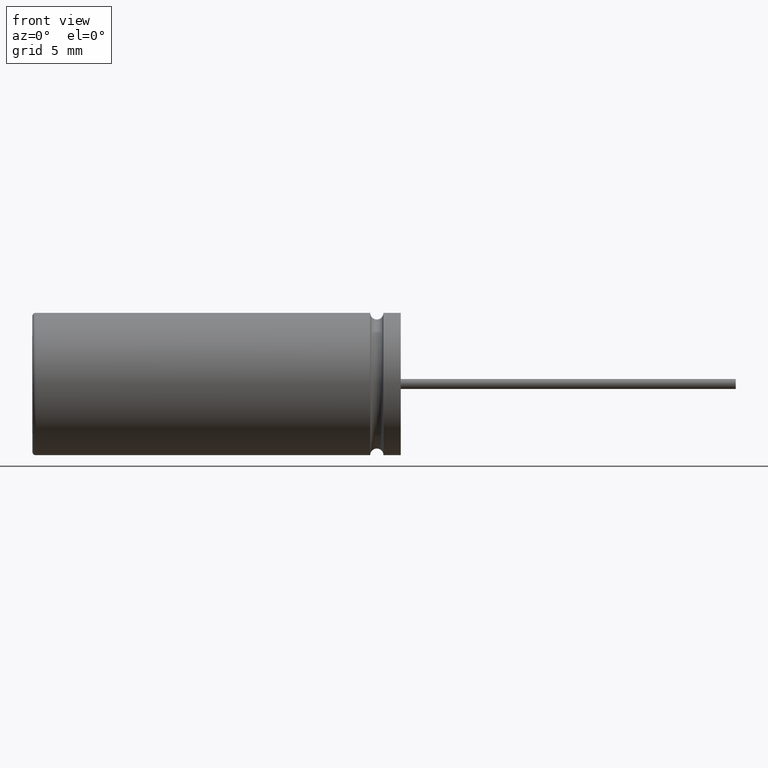
[diagram: clean part render]
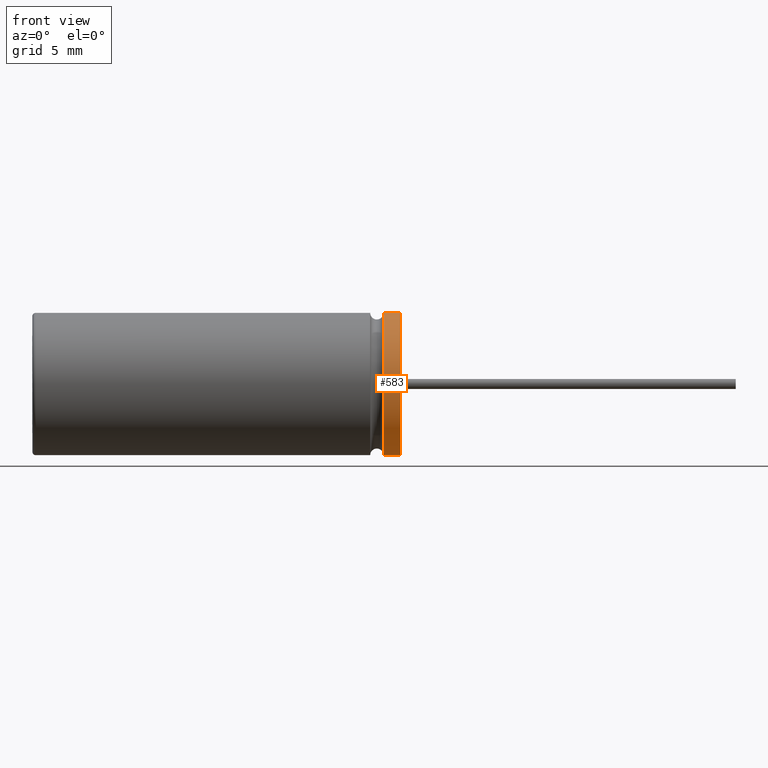
[diagram: same view with one face highlighted and labeled with its STEP entity id]
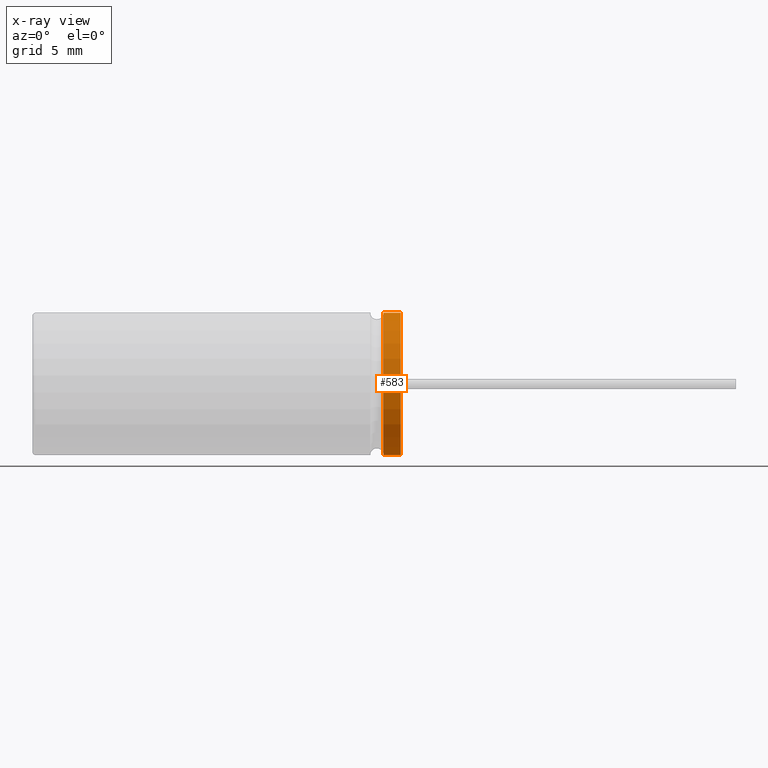
[diagram: x-ray of the same camera — body ghosted, the highlighted face saturated]
A machine part, front view. The second image highlights one B-rep face of the part: STEP entity #583.
The next image is the same camera in x-ray: the body ghosted, the highlighted face saturated — about 0% of this face is hidden behind the body in this view.
In plain terms, the highlighted cylindrical surface (partial cylindrical patch) has radius 4.25 mm, axis along (-1, -0, -0).
Its self-contained STEP definition (entity closure, byte-faithful):
#148 = CARTESIAN_POINT ( 'NONE',  ( 22.00000000000000000, 0.0000000000000000000, 0.0000000000000000000 ) ) ;
#165 = LINE ( 'NONE', #2719, #1576 ) ;
#421 = EDGE_CURVE ( 'NONE', #2424, #1440, #165, .T. ) ;
#572 = LINE ( 'NONE', #1842, #3280 ) ;
#583 = ADVANCED_FACE ( 'NONE', ( #1230 ), #3328, .T. ) ;
#632 = DIRECTION ( 'NONE',  ( 0.0000000000000000000, 0.0000000000000000000, -1.000000000000000000 ) ) ;
#828 = AXIS2_PLACEMENT_3D ( 'NONE', #148, #1979, #1465 ) ;
#851 = CARTESIAN_POINT ( 'NONE',  ( 22.00000000000000000, 0.0000000000000000000, 0.0000000000000000000 ) ) ;
#879 = EDGE_CURVE ( 'NONE', #1807, #1388, #572, .T. ) ;
#1127 = ORIENTED_EDGE ( 'NONE', *, *, #879, .T. ) ;
#1141 = CARTESIAN_POINT ( 'NONE',  ( 20.96599999999999800, 0.0000000000000000000, 0.0000000000000000000 ) ) ;
#1230 = FACE_OUTER_BOUND ( 'NONE', #3076, .T. ) ;
#1233 = ORIENTED_EDGE ( 'NONE', *, *, #1492, .F. ) ;
#1384 = DIRECTION ( 'NONE',  ( 0.0000000000000000000, 0.0000000000000000000, -1.000000000000000000 ) ) ;
#1388 = VERTEX_POINT ( 'NONE', #2148 ) ;
#1440 = VERTEX_POINT ( 'NONE', #2656 ) ;
#1465 = DIRECTION ( 'NONE',  ( 0.0000000000000000000, 0.0000000000000000000, 1.000000000000000000 ) ) ;
#1492 = EDGE_CURVE ( 'NONE', #1807, #2424, #1720, .T. ) ;
#1576 = VECTOR ( 'NONE', #3251, 1000.000000000000000 ) ;
#1720 = CIRCLE ( 'NONE', #2614, 4.250000000000000000 ) ;
#1766 = EDGE_CURVE ( 'NONE', #1388, #1440, #2398, .T. ) ;
#1807 = VERTEX_POINT ( 'NONE', #1988 ) ;
#1842 = CARTESIAN_POINT ( 'NONE',  ( 22.00000000000000000, 0.0000000000000000000, 4.250000000000000000 ) ) ;
#1848 = ORIENTED_EDGE ( 'NONE', *, *, #1766, .T. ) ;
#1979 = DIRECTION ( 'NONE',  ( -1.000000000000000000, -0.0000000000000000000, -0.0000000000000000000 ) ) ;
#1988 = CARTESIAN_POINT ( 'NONE',  ( 22.00000000000000000, 0.0000000000000000000, 4.250000000000000000 ) ) ;
#2148 = CARTESIAN_POINT ( 'NONE',  ( 20.96599999999999800, 0.0000000000000000000, 4.250000000000000000 ) ) ;
#2374 = DIRECTION ( 'NONE',  ( -1.000000000000000000, -0.0000000000000000000, -0.0000000000000000000 ) ) ;
#2398 = CIRCLE ( 'NONE', #2811, 4.250000000000000000 ) ;
#2424 = VERTEX_POINT ( 'NONE', #3211 ) ;
#2614 = AXIS2_PLACEMENT_3D ( 'NONE', #851, #2691, #632 ) ;
#2631 = ORIENTED_EDGE ( 'NONE', *, *, #421, .F. ) ;
#2656 = CARTESIAN_POINT ( 'NONE',  ( 20.96599999999999800, 5.204748896376250700E-016, -4.250000000000000000 ) ) ;
#2691 = DIRECTION ( 'NONE',  ( 1.000000000000000000, 0.0000000000000000000, 0.0000000000000000000 ) ) ;
#2719 = CARTESIAN_POINT ( 'NONE',  ( 22.00000000000000000, 5.204748896376250700E-016, -4.250000000000000000 ) ) ;
#2811 = AXIS2_PLACEMENT_3D ( 'NONE', #1141, #2976, #1384 ) ;
#2976 = DIRECTION ( 'NONE',  ( 1.000000000000000000, -0.0000000000000000000, -0.0000000000000000000 ) ) ;
#3076 = EDGE_LOOP ( 'NONE', ( #2631, #1233, #1127, #1848 ) ) ;
#3211 = CARTESIAN_POINT ( 'NONE',  ( 22.00000000000000000, 5.204748896376250700E-016, -4.250000000000000000 ) ) ;
#3251 = DIRECTION ( 'NONE',  ( -1.000000000000000000, -0.0000000000000000000, -0.0000000000000000000 ) ) ;
#3280 = VECTOR ( 'NONE', #2374, 1000.000000000000000 ) ;
#3328 = CYLINDRICAL_SURFACE ( 'NONE', #828, 4.250000000000000000 ) ;